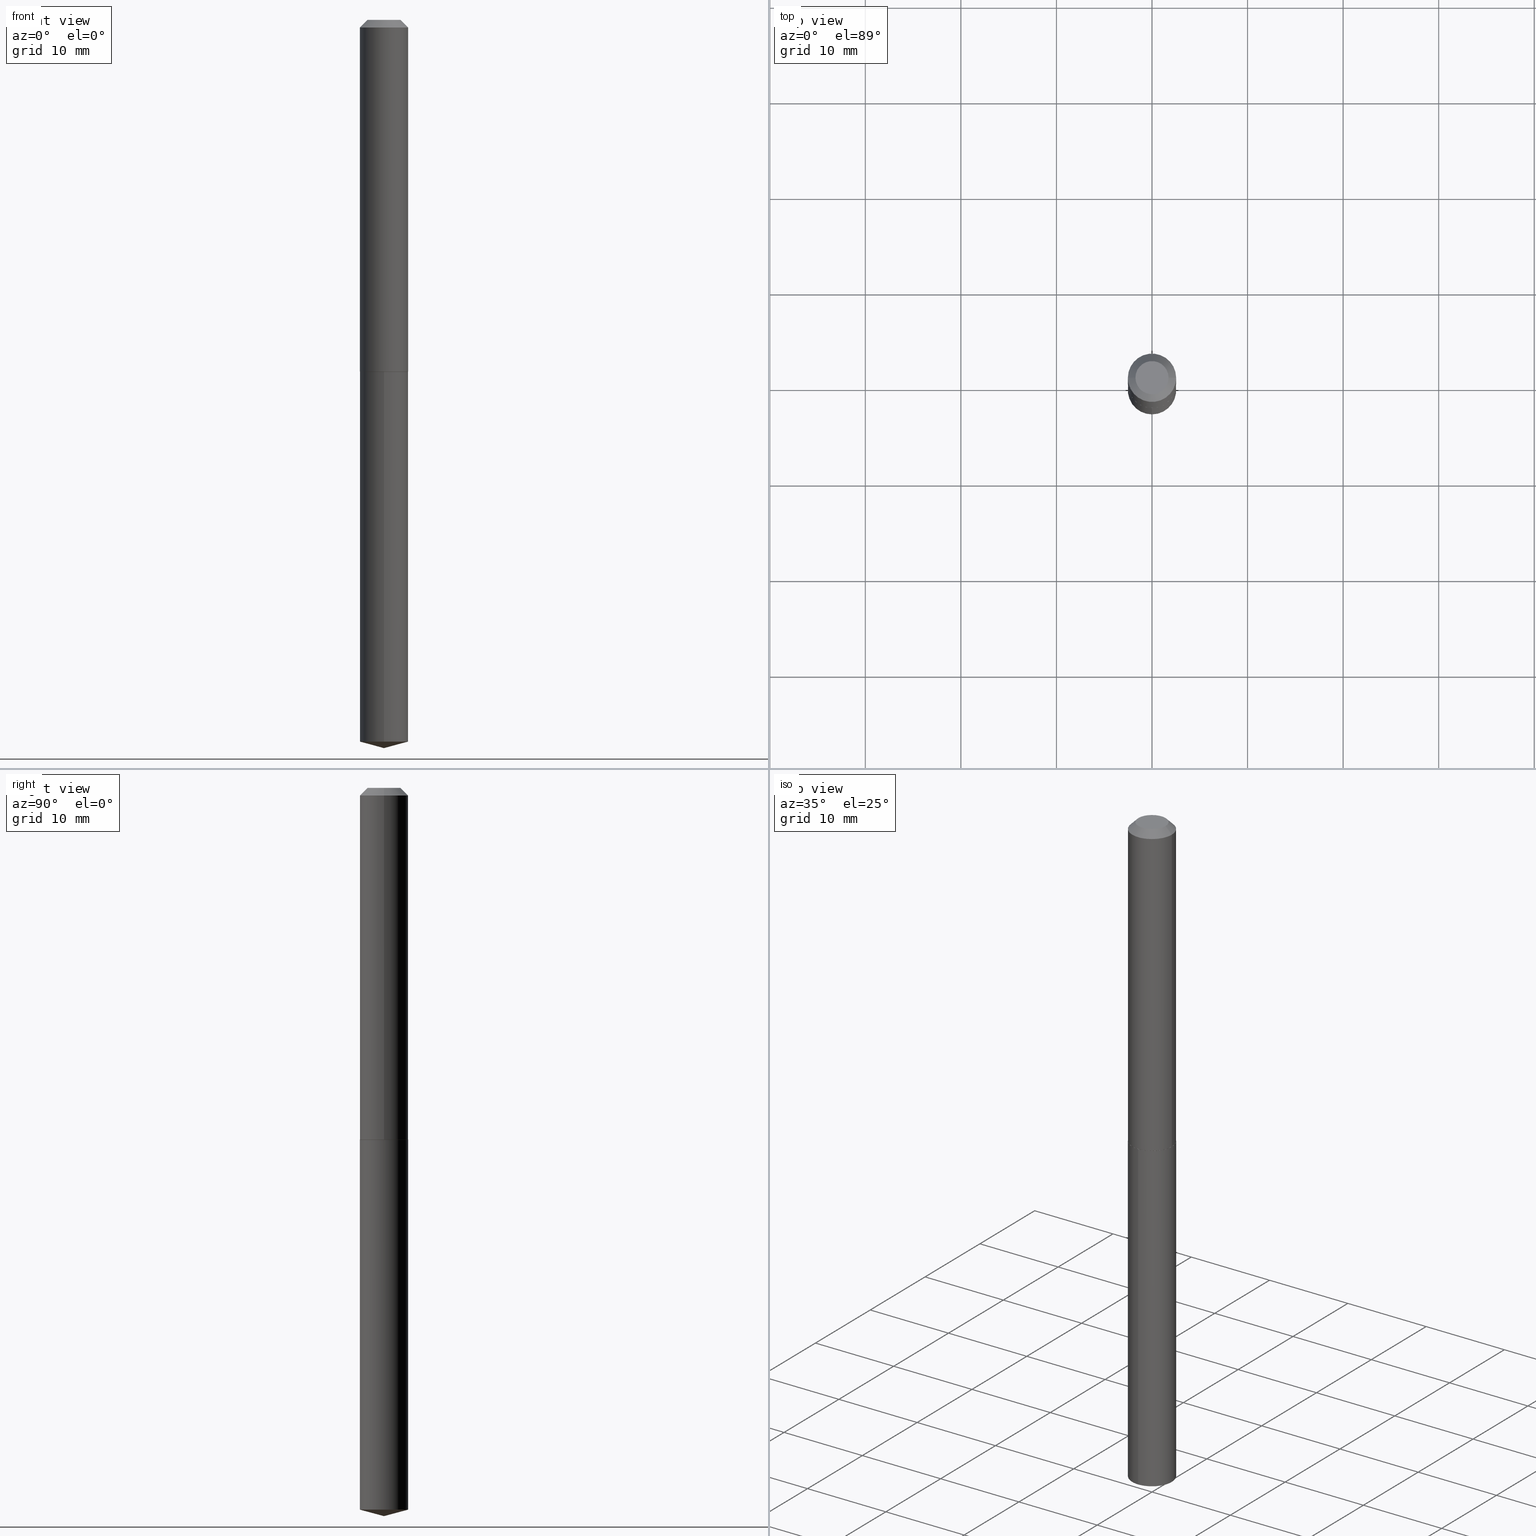
[diagram: canonical four-view strip — front | top / right | iso, engineering-drawing reading convention]
A machine part, canonical four-view strip (front | top / right | iso — engineering-drawing reading convention). The complete STEP part file that produces these views, byte-faithful:
ISO-10303-21;
HEADER;
FILE_DESCRIPTION (( 'STEP AP203' ),
    '1' );
FILE_NAME ('58045.STEP',
    '2024-04-23T00:49:59',
    ( '' ),
    ( '' ),
    'SwSTEP 2.0',
    'SolidWorks 2023',
    '' );
FILE_SCHEMA (( 'CONFIG_CONTROL_DESIGN' ));
ENDSEC;

DATA;
#1 = DIRECTION ( 'NONE',  ( 1.000000000000000000, -6.982962677686268288E-15, 0.000000000000000000 ) ) ;
#2 = CARTESIAN_POINT ( 'NONE',  ( 3.542261565759171006E-29, -5.057410719314297787E-15, -1.448500000000000343 ) ) ;
#3 = ORIENTED_EDGE ( 'NONE', *, *, #155, .T. ) ;
#4 = EDGE_CURVE ( 'NONE', #211, #351, #286, .T. ) ;
#5 = CARTESIAN_POINT ( 'NONE',  ( 3.542261565759171006E-29, -5.057410719314297787E-15, -1.448500000000000343 ) ) ;
#6 = APPROVAL_PERSON_ORGANIZATION ( #292, #361, #318 ) ;
#7 = LINE ( 'NONE', #92, #317 ) ;
#8 = CARTESIAN_POINT ( 'NONE',  ( 7.642090019328598283E-31, -1.091087918388489651E-16, -0.03125000000000019429 ) ) ;
#9 = CARTESIAN_POINT ( 'NONE',  ( 3.543484300162263808E-29, -5.059156459983719291E-15, -1.449000000000000288 ) ) ;
#10 = CARTESIAN_POINT ( 'NONE',  ( -0.09950000000000000511, -1.876269733495272342E-15, -0.03125000000000019429 ) ) ;
#11 = CIRCLE ( 'NONE', #59, 0.09950000000000015776 ) ;
#12 = CYLINDRICAL_SURFACE ( 'NONE', #257, 0.09950000000000008837 ) ;
#13 = PERSON_AND_ORGANIZATION_ROLE ( 'design_owner' ) ;
#14 = DIRECTION ( 'NONE',  ( 1.000000000000000000, -6.982962677686266711E-15, 0.000000000000000000 ) ) ;
#15 = EDGE_LOOP ( 'NONE', ( #53, #281, #66 ) ) ;
#16 = PERSON_AND_ORGANIZATION ( #303, #208 ) ;
#17 = EDGE_CURVE ( 'NONE', #272, #21, #89, .T. ) ;
#18 = MECHANICAL_CONTEXT ( 'NONE', #116, 'mechanical' ) ;
#19 = CARTESIAN_POINT ( 'NONE',  ( 7.513941133258906690E-30, -9.057588523437772200E-15, -1.449000000000000288 ) ) ;
#20 = CIRCLE ( 'NONE', #26, 0.09950000000000000511 ) ;
#21 = VERTEX_POINT ( 'NONE', #179 ) ;
#22 = PLANE ( 'NONE',  #212 ) ;
#23 = APPROVAL_DATE_TIME ( #142, #361 ) ;
#24 = EDGE_CURVE ( 'NONE', #211, #291, #238, .T. ) ;
#25 = VERTEX_POINT ( 'NONE', #271 ) ;
#26 = AXIS2_PLACEMENT_3D ( 'NONE', #215, #388, #159 ) ;
#27 = VERTEX_POINT ( 'NONE', #56 ) ;
#28 = CARTESIAN_POINT ( 'NONE',  ( 3.542261565759171006E-29, -5.057410719314297787E-15, -1.448500000000000343 ) ) ;
#29 = CIRCLE ( 'NONE', #76, 0.09950000000000000511 ) ;
#30 = LOCAL_TIME ( 20, 49, 59.00000000000000000, #42 ) ;
#31 = CARTESIAN_POINT ( 'NONE',  ( 3.542261565759171006E-29, -5.057410719314297787E-15, -1.448500000000000343 ) ) ;
#32 = VECTOR ( 'NONE', #377, 39.37007874015748143 ) ;
#33 = AXIS2_PLACEMENT_3D ( 'NONE', #178, #283, #323 ) ;
#34 = FACE_OUTER_BOUND ( 'NONE', #124, .T. ) ;
#35 = ORIENTED_EDGE ( 'NONE', *, *, #171, .T. ) ;
#36 = FACE_OUTER_BOUND ( 'NONE', #15, .T. ) ;
#37 = EDGE_CURVE ( 'NONE', #351, #216, #316, .T. ) ;
#38 = AXIS2_PLACEMENT_3D ( 'NONE', #2, #120, #239 ) ;
#39 = CIRCLE ( 'NONE', #337, 0.09950000000000000511 ) ;
#40 = ORIENTED_EDGE ( 'NONE', *, *, #191, .T. ) ;
#41 = CARTESIAN_POINT ( 'NONE',  ( 7.336407239872265435E-29, -1.047444284035695497E-14, -3.000000000000000444 ) ) ;
#42 = COORDINATED_UNIVERSAL_TIME_OFFSET ( 5, 0, .BEHIND. ) ;
#43 = CARTESIAN_POINT ( 'NONE',  ( 3.543484300162263808E-29, -5.059156459983719291E-15, -1.449000000000000288 ) ) ;
#44 = DIRECTION ( 'NONE',  ( -0.7071067811863784858, 7.493145998869743582E-15, 0.7071067811867165487 ) ) ;
#45 = ORIENTED_EDGE ( 'NONE', *, *, #37, .F. ) ;
#46 = DATE_TIME_ROLE ( 'creation_date' ) ;
#47 = CARTESIAN_POINT ( 'NONE',  ( -4.492253318864007917E-48, 6.413747168845486278E-34, 1.836970198721037058E-19 ) ) ;
#48 = CIRCLE ( 'NONE', #349, 0.09900000000000022671 ) ;
#49 = CC_DESIGN_PERSON_AND_ORGANIZATION_ASSIGNMENT ( #347, #174, ( #131 ) ) ;
#50 = PERSON_AND_ORGANIZATION ( #303, #208 ) ;
#51 = EDGE_CURVE ( 'NONE', #291, #216, #300, .T. ) ;
#52 = CARTESIAN_POINT ( 'NONE',  ( 0.000000000000000000, 0.000000000000000000, 0.000000000000000000 ) ) ;
#53 = ORIENTED_EDGE ( 'NONE', *, *, #210, .F. ) ;
#54 = ADVANCED_FACE ( 'NONE', ( #243 ), #130, .T. ) ;
#55 = ORIENTED_EDGE ( 'NONE', *, *, #227, .F. ) ;
#56 = CARTESIAN_POINT ( 'NONE',  ( 7.336430574933511922E-29, -1.047440942322110194E-14, -3.000000000000000444 ) ) ;
#57 = AXIS2_PLACEMENT_3D ( 'NONE', #47, #319, #209 ) ;
#58 = VERTEX_POINT ( 'NONE', #62 ) ;
#59 = AXIS2_PLACEMENT_3D ( 'NONE', #31, #365, #363 ) ;
#60 = DIRECTION ( 'NONE',  ( -6.982962677686266711E-15, -1.000000000000000000, 2.745575873029409967E-15 ) ) ;
#61 = CARTESIAN_POINT ( 'NONE',  ( -8.894219756154082272E-28, 1.269850151178317290E-13, 36.37007874015748143 ) ) ;
#62 = CARTESIAN_POINT ( 'NONE',  ( -0.06825000000000000511, 5.311415986715111962E-16, 1.836970198685801929E-19 ) ) ;
#63 = AXIS2_PLACEMENT_3D ( 'NONE', #9, #97, #226 ) ;
#64 = AXIS2_PLACEMENT_3D ( 'NONE', #8, #135, #199 ) ;
#65 = CARTESIAN_POINT ( 'NONE',  ( 0.06825000000000000511, -6.299786654825117791E-16, 1.836970198759722972E-19 ) ) ;
#66 = ORIENTED_EDGE ( 'NONE', *, *, #104, .F. ) ;
#67 =( LENGTH_UNIT ( ) NAMED_UNIT ( * ) SI_UNIT ( $, .METRE. ) );
#68 = CARTESIAN_POINT ( 'NONE',  ( 7.271220184248187710E-29, -1.038134024850855191E-14, -2.973339055353103610 ) ) ;
#69 = UNCERTAINTY_MEASURE_WITH_UNIT (LENGTH_MEASURE( 1.000000000000000082E-05 ), #224, 'distance_accuracy_value', 'NONE');
#70 =( GEOMETRIC_REPRESENTATION_CONTEXT ( 3 ) GLOBAL_UNCERTAINTY_ASSIGNED_CONTEXT ( ( #69 ) ) GLOBAL_UNIT_ASSIGNED_CONTEXT ( ( #224, #313, #270 ) ) REPRESENTATION_CONTEXT ( 'NONE', 'WORKASPACE' ) );
#71 = CALENDAR_DATE ( 2024, 22, 4 ) ;
#72 = ORIENTED_EDGE ( 'NONE', *, *, #139, .T. ) ;
#73 = DATE_AND_TIME ( #113, #162 ) ;
#74 = COORDINATED_UNIVERSAL_TIME_OFFSET ( 5, 0, .BEHIND. ) ;
#75 = DIRECTION ( 'NONE',  ( 1.000000000000000000, -6.982962677686265922E-15, 4.876176775795935793E-29 ) ) ;
#76 = AXIS2_PLACEMENT_3D ( 'NONE', #68, #314, #167 ) ;
#77 = AXIS2_PLACEMENT_3D ( 'NONE', #28, #242, #244 ) ;
#78 = CARTESIAN_POINT ( 'NONE',  ( -0.09950000000000008837, 7.069900220813003129E-16, -4.894340414803635936E-30 ) ) ;
#79 = ORIENTED_EDGE ( 'NONE', *, *, #191, .F. ) ;
#80 = EDGE_LOOP ( 'NONE', ( #107, #83, #258, #85 ) ) ;
#81 = AXIS2_PLACEMENT_3D ( 'NONE', #43, #382, #375 ) ;
#82 = CONICAL_SURFACE ( 'NONE', #302, 0.09950000000000000511, 0.7853981633974452814 ) ;
#83 = ORIENTED_EDGE ( 'NONE', *, *, #219, .T. ) ;
#84 = ORIENTED_EDGE ( 'NONE', *, *, #227, .T. ) ;
#85 = ORIENTED_EDGE ( 'NONE', *, *, #171, .F. ) ;
#86 = DIMENSIONAL_EXPONENTS ( 1.000000000000000000, 0.000000000000000000, 0.000000000000000000, 0.000000000000000000, 0.000000000000000000, 0.000000000000000000, 0.000000000000000000 ) ;
#87 = CARTESIAN_POINT ( 'NONE',  ( 7.069900220813350228E-16, 0.09949999999999495359, -1.449000000000000510 ) ) ;
#88 = ORIENTED_EDGE ( 'NONE', *, *, #24, .F. ) ;
#89 = CIRCLE ( 'NONE', #161, 0.09950000000000000511 ) ;
#90 = VECTOR ( 'NONE', #173, 39.37007874015748854 ) ;
#91 = ADVANCED_FACE ( 'NONE', ( #342 ), #278, .F. ) ;
#92 = CARTESIAN_POINT ( 'NONE',  ( -0.09950000000000000511, 5.856959945909346619E-16, -0.03125000000000019429 ) ) ;
#93 = DIRECTION ( 'NONE',  ( -2.445476858311170174E-29, 3.491469807740367050E-15, 1.000000000000000000 ) ) ;
#94 = CARTESIAN_POINT ( 'NONE',  ( 3.543484300162263808E-29, -5.059156459983719291E-15, -1.449000000000000288 ) ) ;
#95 = CARTESIAN_POINT ( 'NONE',  ( 7.642090019328598283E-31, -1.091087918388489651E-16, -0.03125000000000019429 ) ) ;
#96 = DIRECTION ( 'NONE',  ( -0.7071067811865453523, 2.468850131082234184E-15, -0.7071067811865496822 ) ) ;
#97 = DIRECTION ( 'NONE',  ( 2.445476858311169893E-29, -3.491469807740367050E-15, -1.000000000000000000 ) ) ;
#98 = DIRECTION ( 'NONE',  ( -6.982962677686266711E-15, -1.000000000000000000, 3.510303681827621500E-15 ) ) ;
#99 = DIRECTION ( 'NONE',  ( -2.445468806185136597E-29, 3.491481338843145583E-15, 1.000000000000000000 ) ) ;
#100 = CC_DESIGN_DATE_AND_TIME_ASSIGNMENT ( #202, #46, ( #197 ) ) ;
#101 = DIRECTION ( 'NONE',  ( -2.445468806185136597E-29, 3.491481338843145583E-15, 1.000000000000000000 ) ) ;
#102 = DATE_TIME_ROLE ( 'classification_date' ) ;
#103 = AXIS2_PLACEMENT_3D ( 'NONE', #133, #367, #366 ) ;
#104 = EDGE_CURVE ( 'NONE', #154, #380, #29, .T. ) ;
#105 = AXIS2_PLACEMENT_3D ( 'NONE', #180, #287, #149 ) ;
#106 = FACE_OUTER_BOUND ( 'NONE', #80, .T. ) ;
#107 = ORIENTED_EDGE ( 'NONE', *, *, #104, .T. ) ;
#108 = APPROVAL_STATUS ( 'not_yet_approved' ) ;
#109 = PRODUCT_RELATED_PRODUCT_CATEGORY ( 'detail', '', ( #325 ) ) ;
#110 = DIRECTION ( 'NONE',  ( -2.438088387897960049E-29, 3.491481338843145188E-15, 1.000000000000000000 ) ) ;
#111 = DIRECTION ( 'NONE',  ( 1.000000000000000000, -6.982962677686266711E-15, 0.000000000000000000 ) ) ;
#112 = EDGE_CURVE ( 'NONE', #362, #25, #332, .T. ) ;
#113 = CALENDAR_DATE ( 2024, 22, 4 ) ;
#114 = CARTESIAN_POINT ( 'NONE',  ( 0.09950000000000000511, -7.917283426171163128E-16, -0.03125000000000019429 ) ) ;
#115 = CIRCLE ( 'NONE', #169, 0.09950000000000000511 ) ;
#116 = APPLICATION_CONTEXT ( 'configuration controlled 3d designs of mechanical parts and assemblies' ) ;
#117 = ADVANCED_FACE ( 'NONE', ( #339 ), #12, .T. ) ;
#118 = LINE ( 'NONE', #87, #266 ) ;
#119 = CLOSED_SHELL ( 'NONE', ( #249, #205, #311, #164, #240, #117, #383, #320 ) ) ;
#120 = DIRECTION ( 'NONE',  ( -2.445468806185136597E-29, 3.491481338843145583E-15, 1.000000000000000000 ) ) ;
#121 = CC_DESIGN_APPROVAL ( #361, ( #131 ) ) ;
#122 = APPROVAL ( #108, 'UNSPECIFIED' ) ;
#123 = DIRECTION ( 'NONE',  ( 0.7071067811863784858, -2.468850131080486462E-15, 0.7071067811867165487 ) ) ;
#124 = EDGE_LOOP ( 'NONE', ( #185, #183, #136, #143 ) ) ;
#125 = CARTESIAN_POINT ( 'NONE',  ( 7.336430779554454378E-29, -1.047440942322110194E-14, -3.000000000000000444 ) ) ;
#126 = CARTESIAN_POINT ( 'NONE',  ( 0.09950000000000015776, -5.752215505744083029E-15, -1.448500000000000343 ) ) ;
#127 = EDGE_LOOP ( 'NONE', ( #182, #3, #79, #206 ) ) ;
#128 = EDGE_CURVE ( 'NONE', #216, #21, #356, .T. ) ;
#129 = CARTESIAN_POINT ( 'NONE',  ( 0.09900000000000022671, -5.750469765074661525E-15, -1.449000000000000510 ) ) ;
#130 = CYLINDRICAL_SURFACE ( 'NONE', #103, 0.09950000000000000511 ) ;
#131 = PRODUCT_DEFINITION_FORMATION_WITH_SPECIFIED_SOURCE ( 'ANY', '', #325, .NOT_KNOWN. ) ;
#132 = CARTESIAN_POINT ( 'NONE',  ( 7.069900220813720006E-16, 0.09949999999998959677, -2.973339055353104055 ) ) ;
#133 = CARTESIAN_POINT ( 'NONE',  ( 3.543484300162263808E-29, -5.059156459983719291E-15, -1.449000000000000288 ) ) ;
#134 = FACE_OUTER_BOUND ( 'NONE', #275, .T. ) ;
#135 = DIRECTION ( 'NONE',  ( 2.445468806185136597E-29, -3.491481338843145583E-15, -1.000000000000000000 ) ) ;
#136 = ORIENTED_EDGE ( 'NONE', *, *, #245, .T. ) ;
#137 = VECTOR ( 'NONE', #260, 39.37007874015748143 ) ;
#138 = FACE_OUTER_BOUND ( 'NONE', #158, .T. ) ;
#139 = EDGE_CURVE ( 'NONE', #329, #21, #357, .T. ) ;
#140 = SECURITY_CLASSIFICATION_LEVEL ( 'unclassified' ) ;
#141 = ORIENTED_EDGE ( 'NONE', *, *, #234, .F. ) ;
#142 = DATE_AND_TIME ( #385, #333 ) ;
#143 = ORIENTED_EDGE ( 'NONE', *, *, #17, .T. ) ;
#144 = PERSON_AND_ORGANIZATION_ROLE ( 'creator' ) ;
#145 = ORIENTED_EDGE ( 'NONE', *, *, #51, .T. ) ;
#146 = PERSON_AND_ORGANIZATION_ROLE ( 'classification_officer' ) ;
#147 = FACE_OUTER_BOUND ( 'NONE', #127, .T. ) ;
#148 = CARTESIAN_POINT ( 'NONE',  ( 3.543484300162264368E-29, -5.059156459983719291E-15, -1.449000000000000510 ) ) ;
#149 = DIRECTION ( 'NONE',  ( 1.000000000000000000, 0.000000000000000000, 0.000000000000000000 ) ) ;
#150 = DIRECTION ( 'NONE',  ( 1.000000000000000000, -6.982962677686266711E-15, 4.876176775795936353E-29 ) ) ;
#151 = EDGE_LOOP ( 'NONE', ( #344, #88 ) ) ;
#152 = VECTOR ( 'NONE', #123, 39.37007874015748143 ) ;
#153 = CONICAL_SURFACE ( 'NONE', #194, 146.9311341562558084, 1.308996938995748538 ) ;
#154 = VERTEX_POINT ( 'NONE', #254 ) ;
#155 = EDGE_CURVE ( 'NONE', #351, #272, #204, .T. ) ;
#156 = ORIENTED_EDGE ( 'NONE', *, *, #4, .T. ) ;
#157 = CONICAL_SURFACE ( 'NONE', #77, 0.09950000000000015776, 0.7853981633972092480 ) ;
#158 = EDGE_LOOP ( 'NONE', ( #389, #298 ) ) ;
#159 = DIRECTION ( 'NONE',  ( -6.982962677686266711E-15, -1.000000000000000000, 5.491151746058819933E-15 ) ) ;
#160 = ADVANCED_FACE ( 'NONE', ( #106 ), #321, .T. ) ;
#161 = AXIS2_PLACEMENT_3D ( 'NONE', #261, #354, #111 ) ;
#162 = LOCAL_TIME ( 20, 49, 59.00000000000000000, #207 ) ;
#163 = SECURITY_CLASSIFICATION ( '', '', #140 ) ;
#164 = ADVANCED_FACE ( 'NONE', ( #348 ), #22, .F. ) ;
#165 = DIRECTION ( 'NONE',  ( 1.000000000000000000, -6.982962677686268288E-15, 0.000000000000000000 ) ) ;
#166 = CARTESIAN_POINT ( 'NONE',  ( -8.894219756154082272E-28, 1.269850151178317290E-13, 36.37007874015748143 ) ) ;
#167 = DIRECTION ( 'NONE',  ( -6.982962677686266711E-15, -1.000000000000000000, 5.491151746058819933E-15 ) ) ;
#168 = ORIENTED_EDGE ( 'NONE', *, *, #374, .T. ) ;
#169 = AXIS2_PLACEMENT_3D ( 'NONE', #94, #276, #60 ) ;
#170 = COORDINATED_UNIVERSAL_TIME_OFFSET ( 5, 0, .BEHIND. ) ;
#171 = EDGE_CURVE ( 'NONE', #154, #362, #353, .T. ) ;
#172 = DESIGN_CONTEXT ( 'detailed design', #368, 'design' ) ;
#173 = DIRECTION ( 'NONE',  ( -6.745023994389839133E-15, -0.9659258262890676461, 0.2588190451025227934 ) ) ;
#174 = PERSON_AND_ORGANIZATION_ROLE ( 'design_supplier' ) ;
#175 = ORIENTED_EDGE ( 'NONE', *, *, #51, .F. ) ;
#176 = CIRCLE ( 'NONE', #33, 0.06825000000000000511 ) ;
#177 = CIRCLE ( 'NONE', #57, 0.06825000000000000511 ) ;
#178 = CARTESIAN_POINT ( 'NONE',  ( -4.492253318864007917E-48, 6.413747168845486278E-34, 1.836970198721037058E-19 ) ) ;
#179 = CARTESIAN_POINT ( 'NONE',  ( 0.09950000000000000511, -8.039135782686324687E-16, -0.03125000000000019429 ) ) ;
#180 = CARTESIAN_POINT ( 'NONE',  ( 0.000000000000000000, 0.000000000000000000, 0.000000000000000000 ) ) ;
#181 = DIRECTION ( 'NONE',  ( 1.000000000000000000, -6.982962677686266711E-15, 4.876176775795936353E-29 ) ) ;
#182 = ORIENTED_EDGE ( 'NONE', *, *, #306, .T. ) ;
#183 = ORIENTED_EDGE ( 'NONE', *, *, #198, .F. ) ;
#184 = EDGE_CURVE ( 'NONE', #329, #58, #176, .T. ) ;
#185 = ORIENTED_EDGE ( 'NONE', *, *, #139, .F. ) ;
#186 = FACE_OUTER_BOUND ( 'NONE', #328, .T. ) ;
#187 = LOCAL_TIME ( 20, 49, 59.00000000000000000, #376 ) ;
#188 = ORIENTED_EDGE ( 'NONE', *, *, #255, .T. ) ;
#189 = CC_DESIGN_PERSON_AND_ORGANIZATION_ASSIGNMENT ( #294, #144, ( #197 ) ) ;
#190 = ORIENTED_EDGE ( 'NONE', *, *, #374, .F. ) ;
#191 = EDGE_CURVE ( 'NONE', #21, #272, #39, .T. ) ;
#192 = AXIS2_PLACEMENT_3D ( 'NONE', #61, #193, #305 ) ;
#193 = DIRECTION ( 'NONE',  ( -2.445476858311170174E-29, 3.491469807740367050E-15, 1.000000000000000000 ) ) ;
#194 = AXIS2_PLACEMENT_3D ( 'NONE', #166, #373, #98 ) ;
#195 = CARTESIAN_POINT ( 'NONE',  ( -0.09950000000000015776, -4.350420697232997869E-15, -1.448500000000000343 ) ) ;
#196 = ORIENTED_EDGE ( 'NONE', *, *, #210, .T. ) ;
#197 = PRODUCT_DEFINITION ( 'UNKNOWN', '', #131, #172 ) ;
#198 = EDGE_CURVE ( 'NONE', #58, #329, #177, .T. ) ;
#199 = DIRECTION ( 'NONE',  ( -1.000000000000000000, 6.982962677686266711E-15, 0.000000000000000000 ) ) ;
#200 = PERSON_AND_ORGANIZATION ( #303, #208 ) ;
#201 = ORIENTED_EDGE ( 'NONE', *, *, #17, .F. ) ;
#202 = DATE_AND_TIME ( #322, #30 ) ;
#203 = CARTESIAN_POINT ( 'NONE',  ( 7.642090019328598283E-31, -1.091087918388489651E-16, -0.03125000000000019429 ) ) ;
#204 = LINE ( 'NONE', #78, #280 ) ;
#205 = ADVANCED_FACE ( 'NONE', ( #147 ), #327, .T. ) ;
#206 = ORIENTED_EDGE ( 'NONE', *, *, #128, .F. ) ;
#207 = COORDINATED_UNIVERSAL_TIME_OFFSET ( 5, 0, .BEHIND. ) ;
#208 = ORGANIZATION ( 'UNSPECIFIED', 'UNSPECIFIED', '' ) ;
#209 = DIRECTION ( 'NONE',  ( 1.000000000000000000, -6.982962677686268288E-15, 4.876180166811199600E-29 ) ) ;
#210 = EDGE_CURVE ( 'NONE', #27, #154, #295, .T. ) ;
#211 = VERTEX_POINT ( 'NONE', #360 ) ;
#212 = AXIS2_PLACEMENT_3D ( 'NONE', #19, #110, #75 ) ;
#213 = CC_DESIGN_SECURITY_CLASSIFICATION ( #163, ( #131 ) ) ;
#214 = ORIENTED_EDGE ( 'NONE', *, *, #306, .F. ) ;
#215 = CARTESIAN_POINT ( 'NONE',  ( 7.271220184248187710E-29, -1.038134024850855191E-14, -2.973339055353103610 ) ) ;
#216 = VERTEX_POINT ( 'NONE', #335 ) ;
#217 = AXIS2_PLACEMENT_3D ( 'NONE', #52, #101, #181 ) ;
#218 = DIRECTION ( 'NONE',  ( -2.445468806185136597E-29, 3.491481338843145583E-15, 1.000000000000000000 ) ) ;
#219 = EDGE_CURVE ( 'NONE', #380, #25, #118, .T. ) ;
#220 = CARTESIAN_POINT ( 'NONE',  ( 3.543484300162264368E-29, -5.059156459983719291E-15, -1.449000000000000510 ) ) ;
#221 = DIRECTION ( 'NONE',  ( 2.445468806185136597E-29, -3.491481338843145583E-15, -1.000000000000000000 ) ) ;
#222 = ORIENTED_EDGE ( 'NONE', *, *, #219, .F. ) ;
#223 = CC_DESIGN_DATE_AND_TIME_ASSIGNMENT ( #381, #102, ( #163 ) ) ;
#224 =( CONVERSION_BASED_UNIT ( 'INCH', #369 ) LENGTH_UNIT ( ) NAMED_UNIT ( #86 ) );
#225 = MANIFOLD_SOLID_BREP ( 'Body-Move/Copy2[2]', #119 ) ;
#226 = DIRECTION ( 'NONE',  ( 6.982962677686265922E-15, 1.000000000000000000, -3.491469807740367050E-15 ) ) ;
#227 = EDGE_CURVE ( 'NONE', #380, #154, #20, .T. ) ;
#228 = CARTESIAN_POINT ( 'NONE',  ( -6.948047864297481652E-16, -0.09950000000000505662, -1.449000000000000066 ) ) ;
#229 = APPROVAL_ROLE ( '' ) ;
#230 = PERSON_AND_ORGANIZATION ( #303, #208 ) ;
#231 = APPROVAL_DATE_TIME ( #232, #122 ) ;
#232 = DATE_AND_TIME ( #71, #187 ) ;
#233 = ADVANCED_BREP_SHAPE_REPRESENTATION ( '58045', ( #343, #225, #105 ), #70 ) ;
#234 = EDGE_CURVE ( 'NONE', #27, #380, #334, .T. ) ;
#235 = DIRECTION ( 'NONE',  ( 6.863315791527694259E-15, 0.9659258262890694224, 0.2588190451025160765 ) ) ;
#236 = ORIENTED_EDGE ( 'NONE', *, *, #112, .T. ) ;
#237 = EDGE_LOOP ( 'NONE', ( #236, #168 ) ) ;
#238 = CIRCLE ( 'NONE', #296, 0.09900000000000022671 ) ;
#239 = DIRECTION ( 'NONE',  ( 1.000000000000000000, -6.982962677686267499E-15, 0.000000000000000000 ) ) ;
#240 = ADVANCED_FACE ( 'NONE', ( #186 ), #157, .T. ) ;
#241 = DIRECTION ( 'NONE',  ( -2.445476858311170454E-29, 3.491469807740367050E-15, 1.000000000000000000 ) ) ;
#242 = DIRECTION ( 'NONE',  ( -2.445468806185136597E-29, 3.491481338843145583E-15, 1.000000000000000000 ) ) ;
#243 = FACE_OUTER_BOUND ( 'NONE', #315, .T. ) ;
#244 = DIRECTION ( 'NONE',  ( 1.000000000000000000, -6.982962677686267499E-15, 0.000000000000000000 ) ) ;
#245 = EDGE_CURVE ( 'NONE', #58, #272, #7, .T. ) ;
#246 = DIRECTION ( 'NONE',  ( -2.445468806185136597E-29, 3.491481338843145583E-15, 1.000000000000000000 ) ) ;
#247 = PLANE ( 'NONE',  #269 ) ;
#248 = CC_DESIGN_PERSON_AND_ORGANIZATION_ASSIGNMENT ( #200, #13, ( #325 ) ) ;
#249 = ADVANCED_FACE ( 'NONE', ( #308 ), #82, .T. ) ;
#250 = APPROVAL_PERSON_ORGANIZATION ( #230, #345, #263 ) ;
#251 = CARTESIAN_POINT ( 'NONE',  ( -2.246126659432003959E-48, 3.206873584422743139E-34, 9.184850993605185290E-20 ) ) ;
#252 = CARTESIAN_POINT ( 'NONE',  ( 0.000000000000000000, 0.000000000000000000, 0.000000000000000000 ) ) ;
#253 = CALENDAR_DATE ( 2024, 22, 4 ) ;
#254 = CARTESIAN_POINT ( 'NONE',  ( -6.948047864297106943E-16, -0.09950000000001035794, -2.973339055353103166 ) ) ;
#255 = EDGE_CURVE ( 'NONE', #291, #211, #48, .T. ) ;
#256 = CARTESIAN_POINT ( 'NONE',  ( 0.09950000000000008837, -6.948047864297841570E-16, 4.851795891916960794E-30 ) ) ;
#257 = AXIS2_PLACEMENT_3D ( 'NONE', #252, #99, #150 ) ;
#258 = ORIENTED_EDGE ( 'NONE', *, *, #112, .F. ) ;
#259 = PERSON_AND_ORGANIZATION ( #303, #208 ) ;
#260 = DIRECTION ( 'NONE',  ( 0.7071067811865453523, -7.319954787623248157E-15, -0.7071067811865496822 ) ) ;
#261 = CARTESIAN_POINT ( 'NONE',  ( 7.642090019328598283E-31, -1.091087918388489651E-16, -0.03125000000000019429 ) ) ;
#262 = ORIENTED_EDGE ( 'NONE', *, *, #24, .T. ) ;
#263 = APPROVAL_ROLE ( '' ) ;
#264 = DIRECTION ( 'NONE',  ( -2.445476858311170454E-29, 3.491469807740367050E-15, 1.000000000000000000 ) ) ;
#265 = PRODUCT_DEFINITION_SHAPE ( 'NONE', 'NONE',  #197 ) ;
#266 = VECTOR ( 'NONE', #241, 39.37007874015748143 ) ;
#267 = EDGE_LOOP ( 'NONE', ( #304, #72, #40, #336 ) ) ;
#268 = ORIENTED_EDGE ( 'NONE', *, *, #155, .F. ) ;
#269 = AXIS2_PLACEMENT_3D ( 'NONE', #251, #338, #310 ) ;
#270 =( NAMED_UNIT ( * ) SI_UNIT ( $, .STERADIAN. ) SOLID_ANGLE_UNIT ( ) );
#271 = CARTESIAN_POINT ( 'NONE',  ( 7.069900220813727895E-16, 0.09949999999999496747, -1.449000000000000510 ) ) ;
#272 = VERTEX_POINT ( 'NONE', #10 ) ;
#273 = DIRECTION ( 'NONE',  ( -1.000000000000000000, 6.982962677686266711E-15, 0.000000000000000000 ) ) ;
#274 = VECTOR ( 'NONE', #44, 39.37007874015748143 ) ;
#275 = EDGE_LOOP ( 'NONE', ( #188, #156, #214, #175 ) ) ;
#276 = DIRECTION ( 'NONE',  ( -2.445476858311170174E-29, 3.491469807740367050E-15, 1.000000000000000000 ) ) ;
#277 = DIRECTION ( 'NONE',  ( 1.000000000000000000, -6.982962677686267499E-15, 0.000000000000000000 ) ) ;
#278 = PLANE ( 'NONE',  #63 ) ;
#279 = DIRECTION ( 'NONE',  ( -6.982962677686266711E-15, -1.000000000000000000, 2.745575873029409967E-15 ) ) ;
#280 = VECTOR ( 'NONE', #293, 39.37007874015748143 ) ;
#281 = ORIENTED_EDGE ( 'NONE', *, *, #234, .T. ) ;
#282 = CONICAL_SURFACE ( 'NONE', #390, 0.09950000000000015776, 0.7853981633972092480 ) ;
#283 = DIRECTION ( 'NONE',  ( -2.445468806185136597E-29, 3.491481338843145583E-15, 1.000000000000000000 ) ) ;
#284 = CC_DESIGN_PERSON_AND_ORGANIZATION_ASSIGNMENT ( #50, #146, ( #163 ) ) ;
#285 = APPLICATION_PROTOCOL_DEFINITION ( 'international standard', 'config_control_design', 1994, #116 ) ;
#286 = LINE ( 'NONE', #324, #274 ) ;
#287 = DIRECTION ( 'NONE',  ( 0.000000000000000000, 0.000000000000000000, 1.000000000000000000 ) ) ;
#288 = CARTESIAN_POINT ( 'NONE',  ( -6.948047864297481652E-16, -0.09950000000000505662, -1.449000000000000066 ) ) ;
#289 = VECTOR ( 'NONE', #264, 39.37007874015748143 ) ;
#290 = CONICAL_SURFACE ( 'NONE', #192, 146.9311341562558084, 1.308996938995748538 ) ;
#291 = VERTEX_POINT ( 'NONE', #129 ) ;
#292 = PERSON_AND_ORGANIZATION ( #303, #208 ) ;
#293 = DIRECTION ( 'NONE',  ( -2.445468806185136877E-29, 3.491481338843145188E-15, 1.000000000000000000 ) ) ;
#294 = PERSON_AND_ORGANIZATION ( #303, #208 ) ;
#295 = LINE ( 'NONE', #41, #90 ) ;
#296 = AXIS2_PLACEMENT_3D ( 'NONE', #148, #330, #1 ) ;
#297 = APPROVAL_PERSON_ORGANIZATION ( #16, #122, #229 ) ;
#298 = ORIENTED_EDGE ( 'NONE', *, *, #184, .T. ) ;
#299 = ADVANCED_FACE ( 'NONE', ( #36 ), #290, .T. ) ;
#300 = LINE ( 'NONE', #126, #152 ) ;
#301 = ORIENTED_EDGE ( 'NONE', *, *, #128, .T. ) ;
#302 = AXIS2_PLACEMENT_3D ( 'NONE', #95, #221, #273 ) ;
#303 = PERSON ( 'UNSPECIFIED', 'UNSPECIFIED', 'UNSPECIFIED', ('UNSPECIFIED'), ('UNSPECIFIED'), ('UNSPECIFIED') ) ;
#304 = ORIENTED_EDGE ( 'NONE', *, *, #184, .F. ) ;
#305 = DIRECTION ( 'NONE',  ( -6.982962677686266711E-15, -1.000000000000000000, 3.510303681827621500E-15 ) ) ;
#306 = EDGE_CURVE ( 'NONE', #216, #351, #11, .T. ) ;
#307 = ORIENTED_EDGE ( 'NONE', *, *, #37, .T. ) ;
#308 = FACE_OUTER_BOUND ( 'NONE', #267, .T. ) ;
#309 = EDGE_LOOP ( 'NONE', ( #268, #307, #301, #201 ) ) ;
#310 = DIRECTION ( 'NONE',  ( -1.000000000000000000, 6.982962677686265922E-15, -4.876176775795935793E-29 ) ) ;
#311 = ADVANCED_FACE ( 'NONE', ( #134 ), #282, .T. ) ;
#312 = FACE_OUTER_BOUND ( 'NONE', #358, .T. ) ;
#313 =( NAMED_UNIT ( * ) PLANE_ANGLE_UNIT ( ) SI_UNIT ( $, .RADIAN. ) );
#314 = DIRECTION ( 'NONE',  ( -2.445476858311170174E-29, 3.491469807740367050E-15, 1.000000000000000000 ) ) ;
#315 = EDGE_LOOP ( 'NONE', ( #222, #84, #35, #190 ) ) ;
#316 = CIRCLE ( 'NONE', #38, 0.09950000000000015776 ) ;
#317 = VECTOR ( 'NONE', #96, 39.37007874015748143 ) ;
#318 = APPROVAL_ROLE ( '' ) ;
#319 = DIRECTION ( 'NONE',  ( -2.445468806185136597E-29, 3.491481338843145583E-15, 1.000000000000000000 ) ) ;
#320 = ADVANCED_FACE ( 'NONE', ( #138 ), #247, .F. ) ;
#321 = CYLINDRICAL_SURFACE ( 'NONE', #81, 0.09950000000000000511 ) ;
#322 = CALENDAR_DATE ( 2024, 22, 4 ) ;
#323 = DIRECTION ( 'NONE',  ( 1.000000000000000000, -6.982962677686268288E-15, 4.876180166811199600E-29 ) ) ;
#324 = CARTESIAN_POINT ( 'NONE',  ( -0.09950000000000015776, -4.350420697232997869E-15, -1.448500000000000343 ) ) ;
#325 = PRODUCT ( '58045', '58045', '', ( #18 ) ) ;
#326 = APPLICATION_PROTOCOL_DEFINITION ( 'international standard', 'config_control_design', 1994, #368 ) ;
#327 = CYLINDRICAL_SURFACE ( 'NONE', #217, 0.09950000000000008837 ) ;
#328 = EDGE_LOOP ( 'NONE', ( #331, #262, #145, #45 ) ) ;
#329 = VERTEX_POINT ( 'NONE', #65 ) ;
#330 = DIRECTION ( 'NONE',  ( -2.445468806185136597E-29, 3.491481338843145583E-15, 1.000000000000000000 ) ) ;
#331 = ORIENTED_EDGE ( 'NONE', *, *, #4, .F. ) ;
#332 = CIRCLE ( 'NONE', #340, 0.09950000000000000511 ) ;
#333 = LOCAL_TIME ( 20, 49, 59.00000000000000000, #74 ) ;
#334 = LINE ( 'NONE', #125, #371 ) ;
#335 = CARTESIAN_POINT ( 'NONE',  ( 0.09950000000000015776, -5.752215505744083029E-15, -1.448500000000000343 ) ) ;
#336 = ORIENTED_EDGE ( 'NONE', *, *, #245, .F. ) ;
#337 = AXIS2_PLACEMENT_3D ( 'NONE', #203, #386, #14 ) ;
#338 = DIRECTION ( 'NONE',  ( 2.438088387897960049E-29, -3.491481338843145188E-15, -1.000000000000000000 ) ) ;
#339 = FACE_OUTER_BOUND ( 'NONE', #309, .T. ) ;
#340 = AXIS2_PLACEMENT_3D ( 'NONE', #364, #93, #279 ) ;
#341 = LOCAL_TIME ( 20, 49, 59.00000000000000000, #170 ) ;
#342 = FACE_OUTER_BOUND ( 'NONE', #237, .T. ) ;
#343 = MANIFOLD_SOLID_BREP ( 'Body-Move/Copy2[1]', #370 ) ;
#344 = ORIENTED_EDGE ( 'NONE', *, *, #255, .F. ) ;
#345 = APPROVAL ( #352, 'UNSPECIFIED' ) ;
#346 = APPROVAL_DATE_TIME ( #73, #345 ) ;
#347 = PERSON_AND_ORGANIZATION ( #303, #208 ) ;
#348 = FACE_OUTER_BOUND ( 'NONE', #151, .T. ) ;
#349 = AXIS2_PLACEMENT_3D ( 'NONE', #220, #246, #165 ) ;
#350 = SHAPE_DEFINITION_REPRESENTATION ( #265, #233 ) ;
#351 = VERTEX_POINT ( 'NONE', #195 ) ;
#352 = APPROVAL_STATUS ( 'not_yet_approved' ) ;
#353 = LINE ( 'NONE', #288, #289 ) ;
#354 = DIRECTION ( 'NONE',  ( -2.445468806185136597E-29, 3.491481338843145583E-15, 1.000000000000000000 ) ) ;
#355 = PERSON_AND_ORGANIZATION_ROLE ( 'creator' ) ;
#356 = LINE ( 'NONE', #256, #32 ) ;
#357 = LINE ( 'NONE', #114, #137 ) ;
#358 = EDGE_LOOP ( 'NONE', ( #141, #196, #55 ) ) ;
#359 = CC_DESIGN_PERSON_AND_ORGANIZATION_ASSIGNMENT ( #259, #355, ( #131 ) ) ;
#360 = CARTESIAN_POINT ( 'NONE',  ( -0.09900000000000022671, -4.353069924407108281E-15, -1.449000000000000510 ) ) ;
#361 = APPROVAL ( #384, 'UNSPECIFIED' ) ;
#362 = VERTEX_POINT ( 'NONE', #228 ) ;
#363 = DIRECTION ( 'NONE',  ( 1.000000000000000000, -6.982962677686267499E-15, 0.000000000000000000 ) ) ;
#364 = CARTESIAN_POINT ( 'NONE',  ( 3.543484300162263808E-29, -5.059156459983719291E-15, -1.449000000000000288 ) ) ;
#365 = DIRECTION ( 'NONE',  ( -2.445468806185136597E-29, 3.491481338843145583E-15, 1.000000000000000000 ) ) ;
#366 = DIRECTION ( 'NONE',  ( -6.982962677686266711E-15, -1.000000000000000000, 2.745575873029409967E-15 ) ) ;
#367 = DIRECTION ( 'NONE',  ( -2.445476858311170174E-29, 3.491469807740367050E-15, 1.000000000000000000 ) ) ;
#368 = APPLICATION_CONTEXT ( 'configuration controlled 3d designs of mechanical parts and assemblies' ) ;
#369 = LENGTH_MEASURE_WITH_UNIT ( LENGTH_MEASURE( 0.02539999999999999897 ), #67 );
#370 = CLOSED_SHELL ( 'NONE', ( #160, #299, #372, #54, #91 ) ) ;
#371 = VECTOR ( 'NONE', #235, 39.37007874015748143 ) ;
#372 = ADVANCED_FACE ( 'NONE', ( #312 ), #153, .T. ) ;
#373 = DIRECTION ( 'NONE',  ( -2.445476858311170174E-29, 3.491469807740367050E-15, 1.000000000000000000 ) ) ;
#374 = EDGE_CURVE ( 'NONE', #25, #362, #115, .T. ) ;
#375 = DIRECTION ( 'NONE',  ( -6.982962677686266711E-15, -1.000000000000000000, 2.745575873029409967E-15 ) ) ;
#376 = COORDINATED_UNIVERSAL_TIME_OFFSET ( 5, 0, .BEHIND. ) ;
#377 = DIRECTION ( 'NONE',  ( -2.445468806185136877E-29, 3.491481338843145188E-15, 1.000000000000000000 ) ) ;
#378 = CC_DESIGN_APPROVAL ( #345, ( #163 ) ) ;
#379 = CC_DESIGN_APPROVAL ( #122, ( #197 ) ) ;
#380 = VERTEX_POINT ( 'NONE', #132 ) ;
#381 = DATE_AND_TIME ( #253, #341 ) ;
#382 = DIRECTION ( 'NONE',  ( -2.445476858311170174E-29, 3.491469807740367050E-15, 1.000000000000000000 ) ) ;
#383 = ADVANCED_FACE ( 'NONE', ( #34 ), #387, .T. ) ;
#384 = APPROVAL_STATUS ( 'not_yet_approved' ) ;
#385 = CALENDAR_DATE ( 2024, 22, 4 ) ;
#386 = DIRECTION ( 'NONE',  ( -2.445468806185136597E-29, 3.491481338843145583E-15, 1.000000000000000000 ) ) ;
#387 = CONICAL_SURFACE ( 'NONE', #64, 0.09950000000000000511, 0.7853981633974452814 ) ;
#388 = DIRECTION ( 'NONE',  ( -2.445476858311170174E-29, 3.491469807740367050E-15, 1.000000000000000000 ) ) ;
#389 = ORIENTED_EDGE ( 'NONE', *, *, #198, .T. ) ;
#390 = AXIS2_PLACEMENT_3D ( 'NONE', #5, #218, #277 ) ;
ENDSEC;
END-ISO-10303-21;
